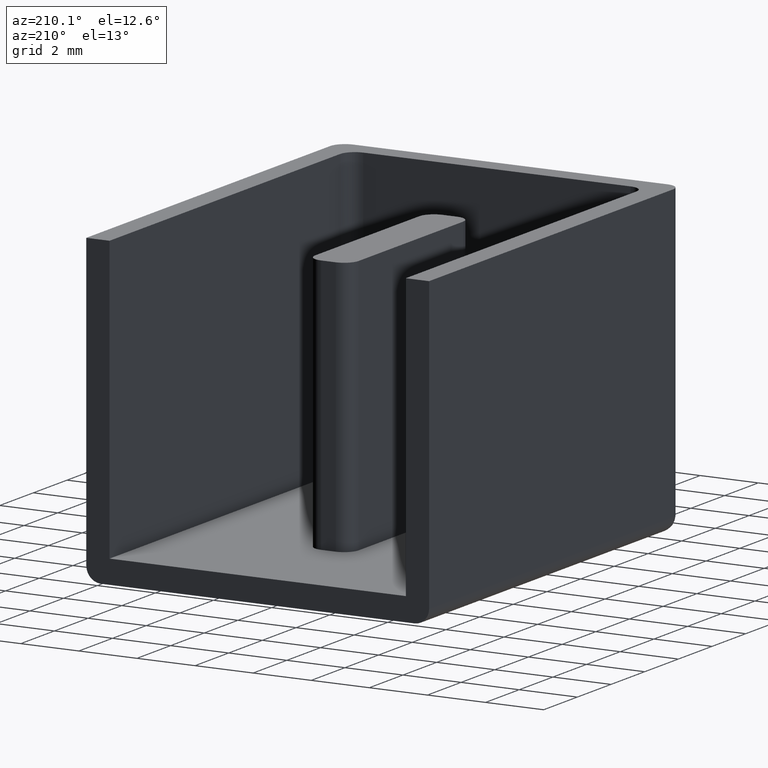
[diagram: clean part render]
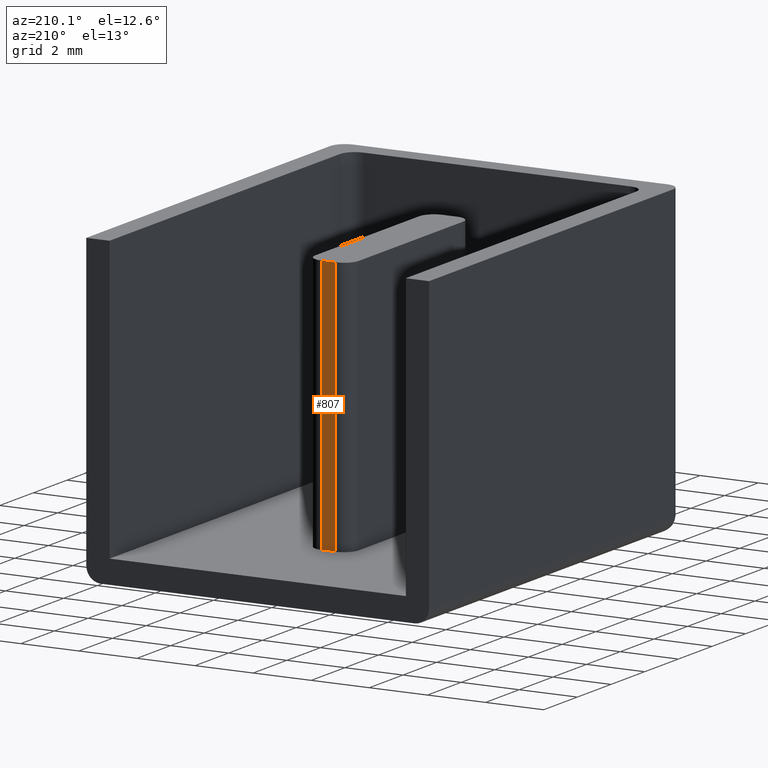
[diagram: same view with one face highlighted and labeled with its STEP entity id]
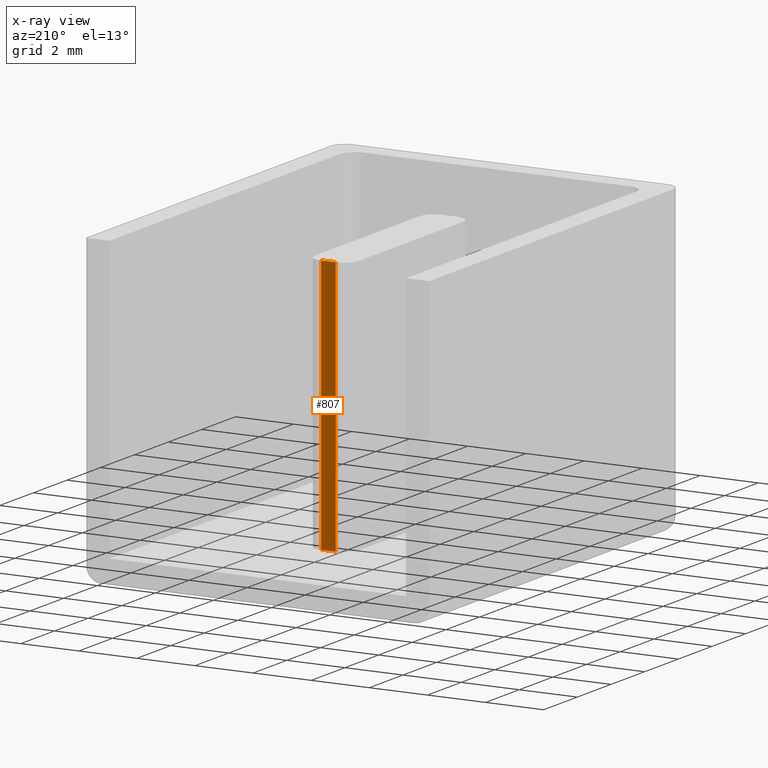
[diagram: x-ray of the same camera — body ghosted, the highlighted face saturated]
A machine part, auxiliary view. The second image highlights one B-rep face of the part: STEP entity #807.
The next image is the same camera in x-ray: the body ghosted, the highlighted face saturated — about 0% of this face is hidden behind the body in this view.
In plain terms, the highlighted planar face has unit normal (-0, -1, 0).
Its self-contained STEP definition (entity closure, byte-faithful):
#8 = AXIS2_PLACEMENT_3D ( 'NONE', #397, #390, #393 ) ;
#24 = VECTOR ( 'NONE', #604, 1000.000000000000000 ) ;
#92 = VECTOR ( 'NONE', #684, 1000.000000000000000 ) ;
#109 = VECTOR ( 'NONE', #744, 1000.000000000000000 ) ;
#123 = VECTOR ( 'NONE', #688, 1000.000000000000000 ) ;
#209 = ORIENTED_EDGE ( 'NONE', *, *, #852, .F. ) ;
#212 = ORIENTED_EDGE ( 'NONE', *, *, #902, .F. ) ;
#232 = ORIENTED_EDGE ( 'NONE', *, *, #884, .T. ) ;
#235 = ORIENTED_EDGE ( 'NONE', *, *, #877, .T. ) ;
#272 = VERTEX_POINT ( 'NONE', #288 ) ;
#275 = VERTEX_POINT ( 'NONE', #326 ) ;
#288 = CARTESIAN_POINT ( 'NONE',  ( 5.649999999999821800, 10.80000000000011400, 0.8000000000000003800 ) ) ;
#289 = EDGE_LOOP ( 'NONE', ( #232, #209, #212, #235 ) ) ;
#302 = VERTEX_POINT ( 'NONE', #375 ) ;
#326 = CARTESIAN_POINT ( 'NONE',  ( 6.149999999999877800, 10.80000000000011400, 0.8000000000000000400 ) ) ;
#375 = CARTESIAN_POINT ( 'NONE',  ( 5.649999999999821800, 10.80000000000011400, 9.629999999999999000 ) ) ;
#376 = VERTEX_POINT ( 'NONE', #425 ) ;
#390 = DIRECTION ( 'NONE',  ( -5.551115123125161100E-014, -1.000000000000000000, 0.0000000000000000000 ) ) ;
#393 = DIRECTION ( 'NONE',  ( 1.000000000000000000, -5.551115123125161100E-014, 0.0000000000000000000 ) ) ;
#397 = CARTESIAN_POINT ( 'NONE',  ( 5.649999999999821800, 10.80000000000014300, 9.629999999999999000 ) ) ;
#408 = FACE_OUTER_BOUND ( 'NONE', #289, .T. ) ;
#414 = PLANE ( 'NONE',  #8 ) ;
#425 = CARTESIAN_POINT ( 'NONE',  ( 6.149999999999877800, 10.80000000000011400, 9.629999999999999000 ) ) ;
#585 = CARTESIAN_POINT ( 'NONE',  ( 5.649999999999821800, 10.80000000000011400, 9.629999999999999000 ) ) ;
#604 = DIRECTION ( 'NONE',  ( -0.0000000000000000000, -0.0000000000000000000, -1.000000000000000000 ) ) ;
#627 = LINE ( 'NONE', #585, #24 ) ;
#684 = DIRECTION ( 'NONE',  ( -0.0000000000000000000, -0.0000000000000000000, -1.000000000000000000 ) ) ;
#688 = DIRECTION ( 'NONE',  ( -1.000000000000000000, 5.551115123125161700E-014, -0.0000000000000000000 ) ) ;
#693 = LINE ( 'NONE', #702, #92 ) ;
#702 = CARTESIAN_POINT ( 'NONE',  ( 6.149999999999877800, 10.80000000000011400, 9.629999999999999000 ) ) ;
#709 = CARTESIAN_POINT ( 'NONE',  ( 5.649999999999821800, 10.80000000000014300, 0.8000000000000000400 ) ) ;
#711 = LINE ( 'NONE', #709, #123 ) ;
#744 = DIRECTION ( 'NONE',  ( -1.000000000000000000, 5.551115123125161700E-014, -0.0000000000000000000 ) ) ;
#746 = CARTESIAN_POINT ( 'NONE',  ( 5.649999999999821800, 10.80000000000014300, 9.629999999999999000 ) ) ;
#756 = LINE ( 'NONE', #746, #109 ) ;
#807 = ADVANCED_FACE ( 'NONE', ( #408 ), #414, .F. ) ;
#852 = EDGE_CURVE ( 'NONE', #302, #272, #627, .T. ) ;
#877 = EDGE_CURVE ( 'NONE', #376, #275, #693, .T. ) ;
#884 = EDGE_CURVE ( 'NONE', #275, #272, #711, .T. ) ;
#902 = EDGE_CURVE ( 'NONE', #376, #302, #756, .T. ) ;